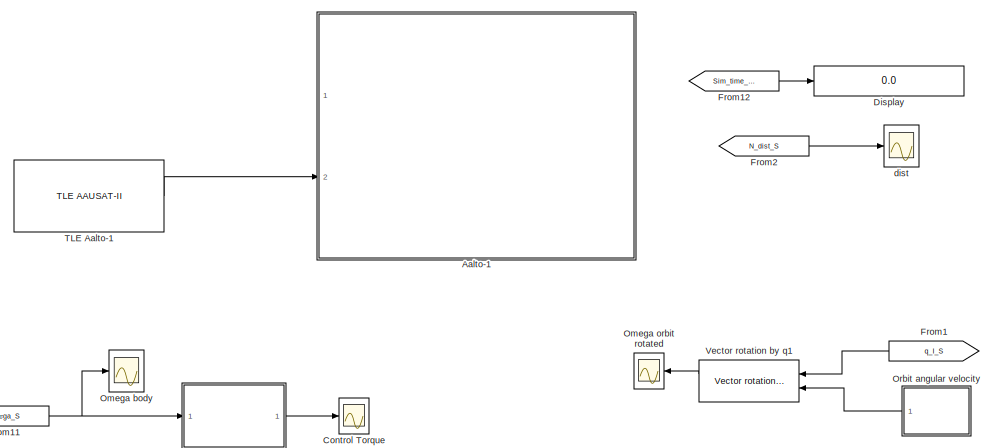
[diagram: root canvas - part 1/2, middle right region]
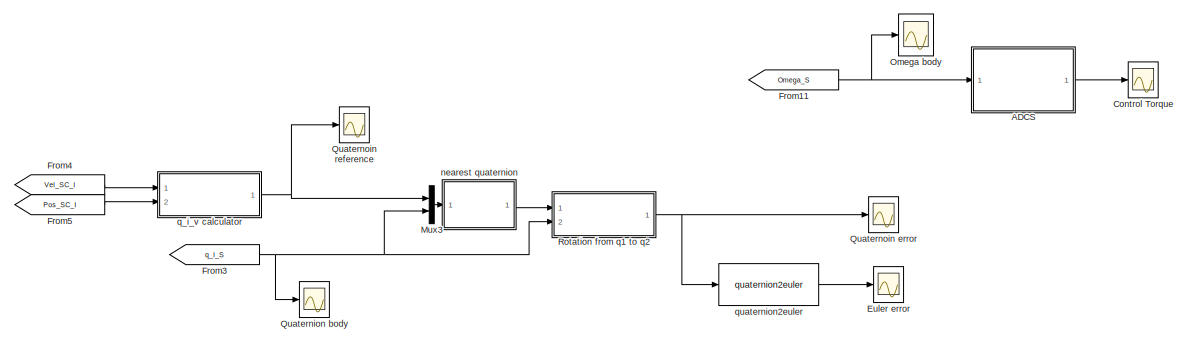
[diagram: root canvas - part 2/2, bottom center region]
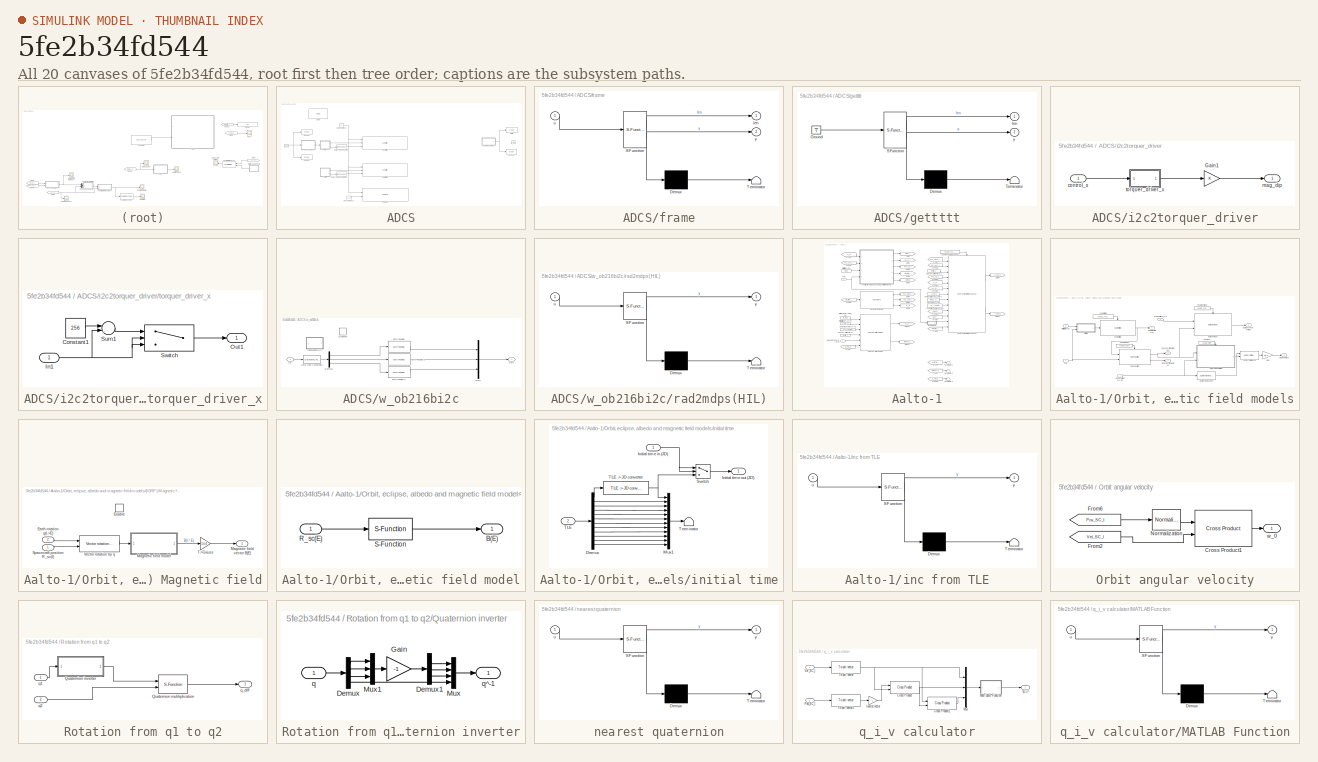
[diagram: thumbnail index - all 20 canvases of the model, root first then tree order]
MODEL slx_5fe2b34fd544
KIND model
BLOCK [SubSystem] ADCS
  Ports = [1, 1]
  RequestExecContextInheritance = off
BLOCK [DataTypeConversion] ADCS/Data Type Conversion
  OutDataTypeStr = double
  RndMeth = Floor
  SaturateOnIntegerOverflow = off
BLOCK [DataTypeConversion] ADCS/Data Type Conversion1
  Commented = on
  OutDataTypeStr = double
  RndMeth = Floor
  SaturateOnIntegerOverflow = off
BLOCK [Reference] ADCS/I2CM read  REF=speedgoatlib_IO311/I2C/I2CM read
  Commented = on
  Ports = [2, 1]
  SourceBlock = speedgoatlib_IO311/I2C/I2CM read
  SourceType = i2cmread_IO311
  chan = 1
  clockDivider = 100
  id = 1
  pciSlot = -1
  subIndexConfiguration = off
  ts = 0.001
BLOCK [Reference] ADCS/I2CM write  REF=speedgoatlib_IO311/I2C/I2CM write
  Ports = [3]
  SourceBlock = speedgoatlib_IO311/I2C/I2CM write
  SourceType = i2cmwrite_IO311
  chan = 1
  clockDivider = 100
  id = 1
  pciSlot = -1
  ts = 0.001
BLOCK [Reference] ADCS/I2CM write1  REF=speedgoatlib_IO311/I2C/I2CM write
  Commented = on
  Ports = [3]
  SourceBlock = speedgoatlib_IO311/I2C/I2CM write
  SourceType = i2cmwrite_IO311
  chan = 1
  clockDivider = 64
  id = 1
  pciSlot = -1
  ts = 0.0001
BLOCK [Reference] ADCS/Orbit r2  REF=slrtlib/Displays and
Logging/Scope 
  Ports = [1]
  SourceBlock = slrtlib/Displays and\nLogging/Scope
  SourceType = xpcscopeblock
  autorestart = off
  autostart = on
  dynamicfilemode = off
  filename = dipole_m.dat
  formatstr = '%15.6f'
  grid = on
  interleave = 10
  maxwritefilesize = 512*1024^2
  mode = Lazy
  noprepostsamples = 0
  nosamples = 10000000
  scopeno = 7
  scopetype = File
  triggerlevel = 0.0
  triggermode = Scope triggering
  triggersample = 0
  triggerscope = 1
  triggersignal = 1
  triggerslope = Either
  trigsignalfromport = off
  viewmode = Numerical
  writesize = 512*1024*1024
  ylimits = [0,0]
BLOCK [Reference] ADCS/Scope 1  REF=slrtlib/Displays and
Logging/Scope 
  Ports = [1]
  SourceBlock = slrtlib/Displays and\nLogging/Scope
  SourceType = xpcscopeblock
  autorestart = off
  autostart = on
  dynamicfilemode = off
  filename = w_ob1.dat
  formatstr = '%15.6f'
  grid = on
  interleave = 1000
  maxwritefilesize = 512*1024^2
  mode = Lazy
  noprepostsamples = 0
  nosamples = 100000
  scopeno = 1
  scopetype = File
  triggerlevel = 0.0
  triggermode = FreeRun
  triggersample = 0
  triggerscope = 1
  triggersignal = 1
  triggerslope = Either
  trigsignalfromport = off
  viewmode = Graphical redraw
  writesize = 512*1024
  ylimits = [0,0]
BLOCK [Reference] ADCS/Scope 3  REF=slrtlib/Displays and
Logging/Scope 
  Ports = [1]
  SourceBlock = slrtlib/Displays and\nLogging/Scope
  SourceType = xpcscopeblock
  autorestart = off
  autostart = on
  dynamicfilemode = off
  filename = w_ob1.dat
  formatstr = '%15.6f'
  grid = on
  interleave = 1000
  maxwritefilesize = 512*1024^2
  mode = Lazy
  noprepostsamples = 0
  nosamples = 1000
  scopeno = 3
  scopetype = Target
  triggerlevel = 0.0
  triggermode = FreeRun
  triggersample = 0
  triggerscope = 1
  triggersignal = 1
  triggerslope = Either
  trigsignalfromport = off
  viewmode = Graphical sliding
  writesize = 512*1024
  ylimits = [0,0]
BLOCK [Reference] ADCS/Scope 4  REF=slrtlib/Displays and
Logging/Scope 
  Ports = [1]
  SourceBlock = slrtlib/Displays and\nLogging/Scope
  SourceType = xpcscopeblock
  autorestart = off
  autostart = on
  dynamicfilemode = off
  filename = w_ob1.dat
  formatstr = '%15.6f'
  grid = on
  interleave = 10
  maxwritefilesize = 512*1024^2
  mode = Lazy
  noprepostsamples = 0
  nosamples = 100000
  scopeno = 4
  scopetype = Target
  triggerlevel = 0.0
  triggermode = FreeRun
  triggersample = 0
  triggerscope = 1
  triggersignal = 1
  triggerslope = Either
  trigsignalfromport = off
  viewmode = Graphical sliding
  writesize = 512*1024
  ylimits = [0,0]
BLOCK [Reference] ADCS/Setup  REF=speedgoatlib_IO311/Setup/Setup
  Ports = []
  SourceBlock = speedgoatlib_IO311/Setup/Setup
  SourceType = setup_IO311
  fpga1 = speedgoat_IO311_CI_01264
  group = Lower channel group setup
  id = 1
  lowerDirection = [1, 1, 0, 0, 1, 0, 1, 0, 0, 0, 0, 0, 0, 0, 0, 0]
  lowerReset = [1]
  lowerValue = [0]
  pciSlot = -1
  upperDirection = [0, 0, 0, 0, 0, 0, 0, 0, 0, 0, 0, 0, 0, 0, 0, 0]
  upperReset = [1]
  upperValue = [0]
BLOCK [Constant] ADCS/Slave address
  Value = 20
BLOCK [Constant] ADCS/Slave address1
  Commented = on
  Value = 13
BLOCK [SubSystem] ADCS/frame
  ErrorFcn = Stateflow.Translate.translate
  PermitHierarchicalResolution = ExplicitOnly
  Ports = [1, 2]
  RequestExecContextInheritance = off
  SFBlockType = MATLAB Function
  TreatAsAtomicUnit = on
BLOCK [Demux] ADCS/frame/ Demux 
  Outputs = 1
  Ports = [1, 1]
BLOCK [S-Function] ADCS/frame/ SFunction 
  EnableBusSupport = on
  FunctionName = sf_sfun
  PortCounts = [1 3]
  Ports = [1, 3]
  Tag = Stateflow S-Function Aalto1_ADCS_ang_vel 4
BLOCK [Terminator] ADCS/frame/ Terminator 
BLOCK [Outport] ADCS/frame/len
  IconDisplay = Port number
BLOCK [Inport] ADCS/frame/u
  IconDisplay = Port number
BLOCK [Outport] ADCS/frame/y
  IconDisplay = Port number
  Port = 2
BLOCK [SubSystem] ADCS/gettttt
  Commented = on
  ErrorFcn = Stateflow.Translate.translate
  PermitHierarchicalResolution = ExplicitOnly
  Ports = [0, 2]
  RequestExecContextInheritance = off
  SFBlockType = MATLAB Function
  TreatAsAtomicUnit = on
BLOCK [Demux] ADCS/gettttt/ Demux 
  Outputs = 1
  Ports = [1, 1]
BLOCK [Ground] ADCS/gettttt/ Ground 
BLOCK [S-Function] ADCS/gettttt/ SFunction 
  EnableBusSupport = on
  FunctionName = sf_sfun
  PortCounts = [1 3]
  Ports = [1, 3]
  Tag = Stateflow S-Function Aalto1_ADCS_ang_vel 5
BLOCK [Terminator] ADCS/gettttt/ Terminator 
BLOCK [Outport] ADCS/gettttt/len
  IconDisplay = Port number
BLOCK [Outport] ADCS/gettttt/y
  IconDisplay = Port number
  Port = 2
BLOCK [SubSystem] ADCS/i2c2torquer_driver
  Ports = [1, 1]
  RequestExecContextInheritance = off
BLOCK [Gain] ADCS/i2c2torquer_driver/Gain1
  OutDataTypeStr = Inherit: Inherit via internal rule
  ParamDataTypeStr = Inherit: Inherit via internal rule
  SaturateOnIntegerOverflow = off
BLOCK [Inport] ADCS/i2c2torquer_driver/control_s
  IconDisplay = Port number
BLOCK [Outport] ADCS/i2c2torquer_driver/mag_dip
  IconDisplay = Port number
BLOCK [SubSystem] ADCS/i2c2torquer_driver/torquer_driver_x
  Ports = [1, 1]
  RequestExecContextInheritance = off
BLOCK [Constant] ADCS/i2c2torquer_driver/torquer_driver_x/Constant1
  Value = 256
BLOCK [Inport] ADCS/i2c2torquer_driver/torquer_driver_x/In1
  IconDisplay = Port number
BLOCK [Outport] ADCS/i2c2torquer_driver/torquer_driver_x/Out1
  IconDisplay = Port number
BLOCK [Sum] ADCS/i2c2torquer_driver/torquer_driver_x/Sum1
  IconShape = round
  InputSameDT = off
  Inputs = |-+
  OutDataTypeStr = Inherit: Inherit via internal rule
  Ports = [2, 1]
  SaturateOnIntegerOverflow = off
BLOCK [Switch] ADCS/i2c2torquer_driver/torquer_driver_x/Switch
  Criteria = u2 > Threshold
  InputSameDT = off
  SaturateOnIntegerOverflow = off
  Threshold = 128
BLOCK [Outport] ADCS/rw_spd
  IconDisplay = Port number
BLOCK [Inport] ADCS/w_gyro
  IconDisplay = Port number
BLOCK [SubSystem] ADCS/w_ob216bi2c
  Ports = [1, 1]
  RequestExecContextInheritance = off
BLOCK [Reference] ADCS/w_ob216bi2c/Byte Packing   REF=xpcutilitieslib/Byte Packing 
  MaskAlignment = 1
  MaskPackedDataType = uint8
  MaskUnpackedDataTypes = {'single'}
  Ports = [1, 1]
  SourceBlock = xpcutilitieslib/Byte Packing
  SourceType = xpcbytepacking
BLOCK [Reference] ADCS/w_ob216bi2c/Byte Packing 1  REF=xpcutilitieslib/Byte Packing 
  MaskAlignment = 1
  MaskPackedDataType = uint8
  MaskUnpackedDataTypes = {'single'}
  Ports = [1, 1]
  SourceBlock = xpcutilitieslib/Byte Packing
  SourceType = xpcbytepacking
BLOCK [Reference] ADCS/w_ob216bi2c/Byte Packing 2  REF=xpcutilitieslib/Byte Packing 
  MaskAlignment = 1
  MaskPackedDataType = uint8
  MaskUnpackedDataTypes = {'single'}
  Ports = [1, 1]
  SourceBlock = xpcutilitieslib/Byte Packing
  SourceType = xpcbytepacking
BLOCK [DataTypeConversion] ADCS/w_ob216bi2c/Data Type Conversion
  OutDataTypeStr = single
  RndMeth = Floor
  SaturateOnIntegerOverflow = off
BLOCK [Demux] ADCS/w_ob216bi2c/Demux1
  DisplayOption = bar
  Outputs = 3
  Ports = [1, 3]
BLOCK [Inport] ADCS/w_ob216bi2c/In1
  IconDisplay = Port number
BLOCK [Mux] ADCS/w_ob216bi2c/Mux1
  DisplayOption = bar
  Inputs = 3
  Ports = [3, 1]
BLOCK [Outport] ADCS/w_ob216bi2c/Out1
  IconDisplay = Port number
BLOCK [Quantizer] ADCS/w_ob216bi2c/Quantizer
  QuantizationInterval = 1
BLOCK [SubSystem] ADCS/w_ob216bi2c/rad2mdps(HIL)
  ErrorFcn = Stateflow.Translate.translate
  PermitHierarchicalResolution = ExplicitOnly
  Ports = [1, 1]
  RequestExecContextInheritance = off
  SFBlockType = MATLAB Function
  TreatAsAtomicUnit = on
BLOCK [Demux] ADCS/w_ob216bi2c/rad2mdps(HIL)/ Demux 
  Outputs = 1
  Ports = [1, 1]
BLOCK [S-Function] ADCS/w_ob216bi2c/rad2mdps(HIL)/ SFunction 
  EnableBusSupport = on
  FunctionName = sf_sfun
  PortCounts = [1 2]
  Ports = [1, 2]
  Tag = Stateflow S-Function Aalto1_ADCS_ang_vel 2
BLOCK [Terminator] ADCS/w_ob216bi2c/rad2mdps(HIL)/ Terminator 
BLOCK [Inport] ADCS/w_ob216bi2c/rad2mdps(HIL)/u
  IconDisplay = Port number
BLOCK [Outport] ADCS/w_ob216bi2c/rad2mdps(HIL)/y
  IconDisplay = Port number
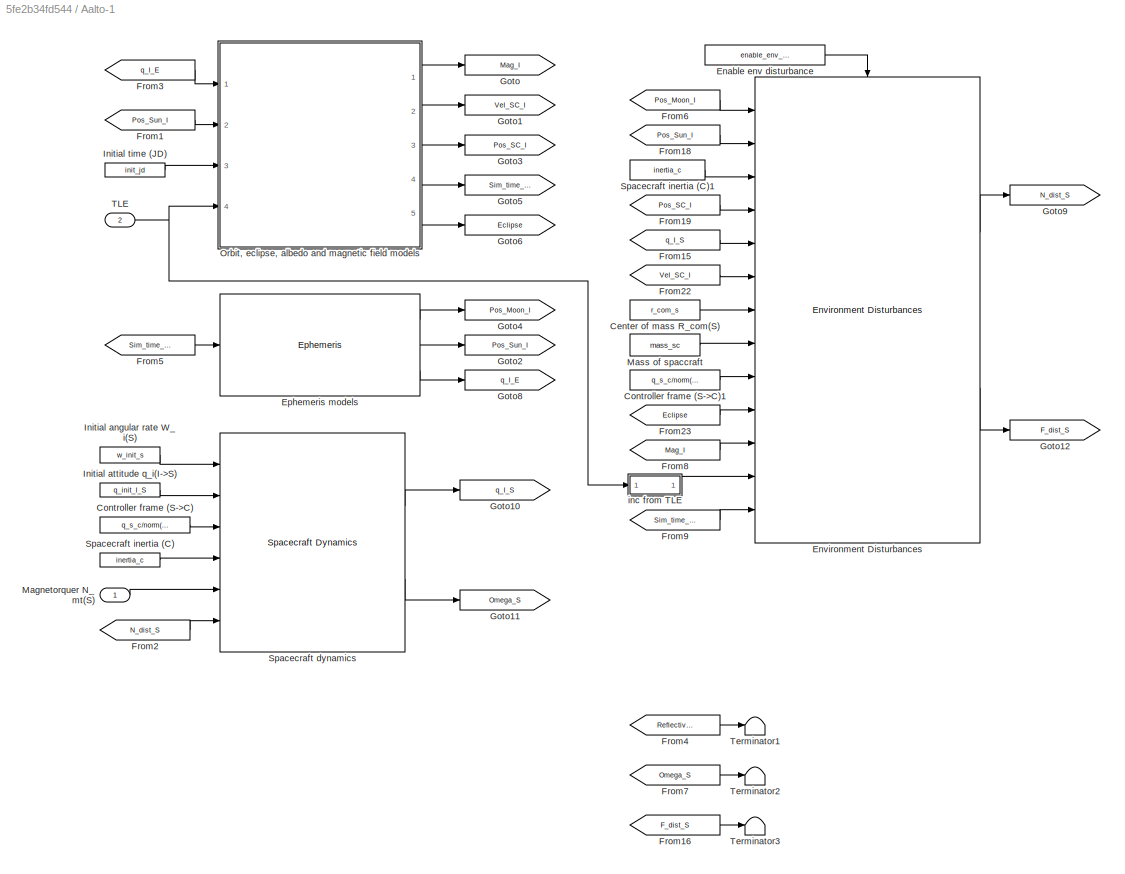
BLOCK [SubSystem] Aalto-1
  AncestorBlock = aausat3_lib/AAUSAT3
  Ports = [2]
  RequestExecContextInheritance = off
  ShowPortLabels = none
BLOCK [Constant] Aalto-1/Center of mass R_com(S)
  Value = r_com_s
BLOCK [Constant] Aalto-1/Controller frame (S->C)
  Value = q_s_c/norm(q_s_c)
BLOCK [Constant] Aalto-1/Controller frame (S->C)1
  Value = q_s_c/norm(q_s_c)
BLOCK [Constant] Aalto-1/Enable env disturbance
  Value = enable_env_disturbance
BLOCK [Reference] Aalto-1/Environment Disturbances  REF=aausat3_lib/Disturbances/Environment Disturbances  (lib defined in mdl_4157f6465749, slx_d9305f96731e)
  Cd = Cd
  Dim = Dim
  G = 6.672e-11
  M_earth = 5.9742e24
  M_moon = 0.073483e24
  M_sun = 1.989e30
  Ports = [13, 2, 1]
  SourceBlock = aausat3_lib/Disturbances/Environment Disturbances
  enable_atmospheric_dist = on
  enable_gravity_dist = on
  enable_mag_residual_dist = on
  enable_rad_dist = on
  rho = rho
  sola_m_flux = solar_m_flux
  solar_absorb_coeff = solar_absorb_coeff
BLOCK [Reference] Aalto-1/Ephemeris models  REF=aausat3_lib/Orbit and Ephemeris/Ephemeris  (lib defined in mdl_4157f6465749, slx_d9305f96731e)
  Ports = [1, 3]
  SourceBlock = aausat3_lib/Orbit and Ephemeris/Ephemeris
  SourceType = SubSystem
BLOCK [From] Aalto-1/From1
  CloseFcn = tagdialog Close
  GotoTag = Pos_Sun_I
  TagVisibility = global
BLOCK [From] Aalto-1/From15
  CloseFcn = tagdialog Close
  GotoTag = q_I_S
  TagVisibility = global
BLOCK [From] Aalto-1/From16
  CloseFcn = tagdialog Close
  GotoTag = F_dist_S
  TagVisibility = global
BLOCK [From] Aalto-1/From18
  CloseFcn = tagdialog Close
  GotoTag = Pos_Sun_I
  TagVisibility = global
BLOCK [From] Aalto-1/From19
  CloseFcn = tagdialog Close
  GotoTag = Pos_SC_I
  TagVisibility = global
BLOCK [From] Aalto-1/From2
  CloseFcn = tagdialog Close
  GotoTag = N_dist_S
  TagVisibility = global
BLOCK [From] Aalto-1/From22
  CloseFcn = tagdialog Close
  GotoTag = Vel_SC_I
  TagVisibility = global
BLOCK [From] Aalto-1/From23
  CloseFcn = tagdialog Close
  GotoTag = Eclipse
  TagVisibility = global
BLOCK [From] Aalto-1/From3
  CloseFcn = tagdialog Close
  GotoTag = q_I_E
  TagVisibility = global
BLOCK [From] Aalto-1/From4
  CloseFcn = tagdialog Close
  GotoTag = Reflectivity
BLOCK [From] Aalto-1/From5
  CloseFcn = tagdialog Close
  GotoTag = Sim_time_JD
  TagVisibility = global
BLOCK [From] Aalto-1/From6
  CloseFcn = tagdialog Close
  GotoTag = Pos_Moon_I
  TagVisibility = global
BLOCK [From] Aalto-1/From7
  CloseFcn = tagdialog Close
  GotoTag = Omega_S
  TagVisibility = global
BLOCK [From] Aalto-1/From8
  CloseFcn = tagdialog Close
  GotoTag = Mag_I
  TagVisibility = global
BLOCK [From] Aalto-1/From9
  CloseFcn = tagdialog Close
  GotoTag = Sim_time_JD
  TagVisibility = global
BLOCK [Goto] Aalto-1/Goto
  GotoTag = Mag_I
  TagVisibility = global
BLOCK [Goto] Aalto-1/Goto1
  GotoTag = Vel_SC_I
  TagVisibility = global
BLOCK [Goto] Aalto-1/Goto10
  GotoTag = q_I_S
  TagVisibility = global
BLOCK [Goto] Aalto-1/Goto11
  GotoTag = Omega_S
  TagVisibility = global
BLOCK [Goto] Aalto-1/Goto12
  GotoTag = F_dist_S
  TagVisibility = global
BLOCK [Goto] Aalto-1/Goto2
  GotoTag = Pos_Sun_I
  TagVisibility = global
BLOCK [Goto] Aalto-1/Goto3
  GotoTag = Pos_SC_I
  TagVisibility = global
BLOCK [Goto] Aalto-1/Goto4
  GotoTag = Pos_Moon_I
  TagVisibility = global
BLOCK [Goto] Aalto-1/Goto5
  GotoTag = Sim_time_JD
  TagVisibility = global
BLOCK [Goto] Aalto-1/Goto6
  GotoTag = Eclipse
  TagVisibility = global
BLOCK [Goto] Aalto-1/Goto8
  GotoTag = q_I_E
  TagVisibility = global
BLOCK [Goto] Aalto-1/Goto9
  GotoTag = N_dist_S
  TagVisibility = global
BLOCK [Constant] Aalto-1/Initial angular rate W_i(S)
  Value = w_init_s
BLOCK [Constant] Aalto-1/Initial attitude q_i(I->S)
  Value = q_init_I_S
BLOCK [Constant] Aalto-1/Initial time (JD)
  Value = init_jd
BLOCK [Inport] Aalto-1/Magnetorquer N_mt(S)
  IconDisplay = Port number
BLOCK [Constant] Aalto-1/Mass of spaccraft
  Value = mass_sc
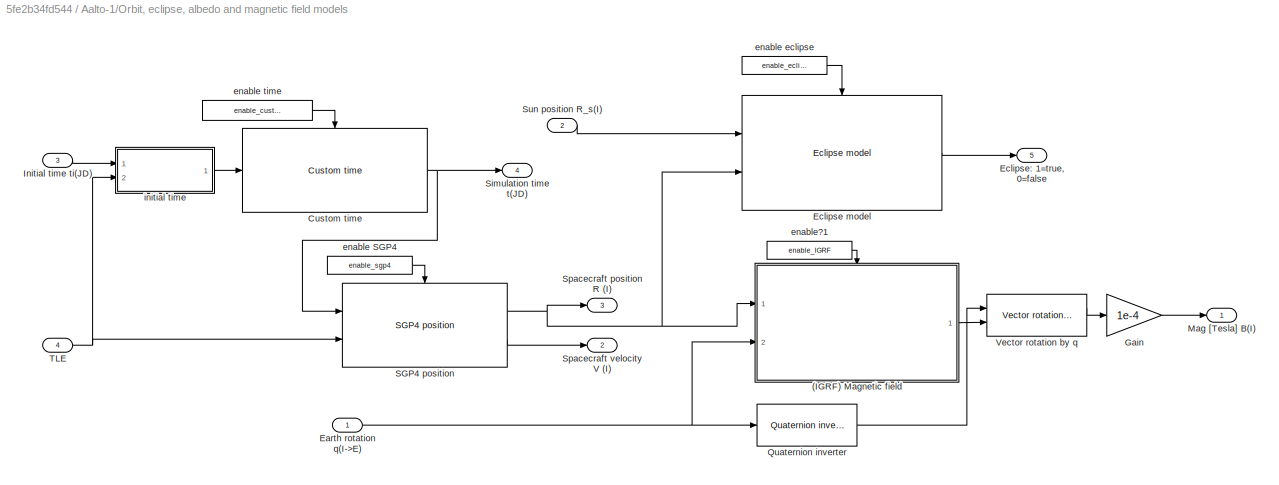
BLOCK [SubSystem] Aalto-1/Orbit, eclipse, albedo and magnetic field models
  AncestorBlock = aausat3_lib/Orbit and Ephemeris/Orbit and Magnetic field models
  Ports = [4, 5]
  RequestExecContextInheritance = off
BLOCK [SubSystem] Aalto-1/Orbit, eclipse, albedo and magnetic field models/(IGRF) Magnetic field
  AncestorBlock = aausat3_lib/Orbit and Ephemeris/(IGRF) Magnetic field
  Ports = [2, 1, 1]
  RequestExecContextInheritance = off
  TreatAsAtomicUnit = on
BLOCK [Inport] Aalto-1/Orbit, eclipse, albedo and magnetic field models/(IGRF) Magnetic field/Earth rotation q(I->E)
  IconDisplay = Port number
  Port = 2
BLOCK [EnablePort] Aalto-1/Orbit, eclipse, albedo and magnetic field models/(IGRF) Magnetic field/Enable
  Ports = []
BLOCK [SubSystem] Aalto-1/Orbit, eclipse, albedo and magnetic field models/(IGRF) Magnetic field/Magnetic field model
  Ports = [1, 1]
  RequestExecContextInheritance = off
BLOCK [Outport] Aalto-1/Orbit, eclipse, albedo and magnetic field models/(IGRF) Magnetic field/Magnetic field model/B(E)
  IconDisplay = Port number
BLOCK [Inport] Aalto-1/Orbit, eclipse, albedo and magnetic field models/(IGRF) Magnetic field/Magnetic field model/R_sc(E)
  IconDisplay = Port number
BLOCK [S-Function] Aalto-1/Orbit, eclipse, albedo and magnetic field models/(IGRF) Magnetic field/Magnetic field model/S-Function
  EnableBusSupport = off
  FunctionName = igrfS2
  Parameters = 2009,13
  Ports = [1, 1]
BLOCK [Outport] Aalto-1/Orbit, eclipse, albedo and magnetic field models/(IGRF) Magnetic field/Magnetic field vector B(E)
  IconDisplay = Port number
BLOCK [Inport] Aalto-1/Orbit, eclipse, albedo and magnetic field models/(IGRF) Magnetic field/Spacecraft position R_sc(I)
  IconDisplay = Port number
BLOCK [Gain] Aalto-1/Orbit, eclipse, albedo and magnetic field models/(IGRF) Magnetic field/T->Gauss
  Gain = 1e4
BLOCK [Reference] Aalto-1/Orbit, eclipse, albedo and magnetic field models/(IGRF) Magnetic field/Vector rotation by q  REF=aausat3_lib/Math Utilities/Quaternion operations/Vector rotation by q  (lib defined in mdl_4157f6465749, slx_d9305f96731e)
  Ports = [2, 2]
  SourceBlock = aausat3_lib/Math Utilities/Quaternion operations/Vector rotation by q
  SourceType = SubSystem
BLOCK [Reference] Aalto-1/Orbit, eclipse, albedo and magnetic field models/Custom time  REF=aausat3_lib/Orbit and Ephemeris/Custom time  (lib defined in mdl_4157f6465749, slx_d9305f96731e)
  Ports = [1, 1, 1]
  SourceBlock = aausat3_lib/Orbit and Ephemeris/Custom time
  SourceType = SubSystem
BLOCK [Inport] Aalto-1/Orbit, eclipse, albedo and magnetic field models/Earth rotation q(I->E)
  IconDisplay = Port number
BLOCK [Reference] Aalto-1/Orbit, eclipse, albedo and magnetic field models/Eclipse model  REF=aausat3_lib/Orbit and Ephemeris/Eclipse model  (lib defined in mdl_4157f6465749, slx_d9305f96731e)
  Ports = [2, 1, 1]
  SourceBlock = aausat3_lib/Orbit and Ephemeris/Eclipse model
  enable = off
  r_e = r_e
  theta_e = theta_e
BLOCK [Outport] Aalto-1/Orbit, eclipse, albedo and magnetic field models/Eclipse: 1=true, 0=false
  IconDisplay = Port number
  Port = 5
  PortDimensions = 1
BLOCK [Gain] Aalto-1/Orbit, eclipse, albedo and magnetic field models/Gain
  Gain = 1e-4
  OutDataTypeStr = Inherit: Inherit via internal rule
  ParamDataTypeStr = Inherit: Inherit via internal rule
  SaturateOnIntegerOverflow = off
BLOCK [Inport] Aalto-1/Orbit, eclipse, albedo and magnetic field models/Initial time ti(JD)
  IconDisplay = Port number
  Port = 3
BLOCK [Outport] Aalto-1/Orbit, eclipse, albedo and magnetic field models/Mag [Tesla] B(I)
  IconDisplay = Port number
BLOCK [Reference] Aalto-1/Orbit, eclipse, albedo and magnetic field models/Quaternion inverter  REF=aausat3_lib/Math Utilities/Quaternion operations/Quaternion inverter  (lib defined in mdl_4157f6465749, slx_d9305f96731e)
  Ports = [1, 1]
  SourceBlock = aausat3_lib/Math Utilities/Quaternion operations/Quaternion inverter
  SourceType = SubSystem
BLOCK [Reference] Aalto-1/Orbit, eclipse, albedo and magnetic field models/SGP4 position  REF=aausat3_lib/Orbit and Ephemeris/SGP4 position  (lib defined in mdl_4157f6465749, slx_d9305f96731e)
  Ports = [2, 2, 1]
  SourceBlock = aausat3_lib/Orbit and Ephemeris/SGP4 position
  SourceType = SubSystem
BLOCK [Outport] Aalto-1/Orbit, eclipse, albedo and magnetic field models/Simulation time t(JD)
  IconDisplay = Port number
  Port = 4
BLOCK [Outport] Aalto-1/Orbit, eclipse, albedo and magnetic field models/Spacecraft position R (I)
  IconDisplay = Port number
  Port = 3
BLOCK [Outport] Aalto-1/Orbit, eclipse, albedo and magnetic field models/Spacecraft velocity V (I)
  IconDisplay = Port number
  Port = 2
BLOCK [Inport] Aalto-1/Orbit, eclipse, albedo and magnetic field models/Sun position R_s(I)
  IconDisplay = Port number
  Port = 2
BLOCK [Inport] Aalto-1/Orbit, eclipse, albedo and magnetic field models/TLE
  IconDisplay = Port number
  Port = 4
BLOCK [Reference] Aalto-1/Orbit, eclipse, albedo and magnetic field models/Vector rotation by q  REF=aausat3_lib/Math Utilities/Quaternion operations/Vector rotation by q  (lib defined in mdl_4157f6465749, slx_d9305f96731e)
  Ports = [2, 2]
  SourceBlock = aausat3_lib/Math Utilities/Quaternion operations/Vector rotation by q
  SourceType = SubSystem
BLOCK [Constant] Aalto-1/Orbit, eclipse, albedo and magnetic field models/enable SGP4
  Value = enable_sgp4
BLOCK [Constant] Aalto-1/Orbit, eclipse, albedo and magnetic field models/enable eclipse
  Value = enable_eclipse
BLOCK [Constant] Aalto-1/Orbit, eclipse, albedo and magnetic field models/enable time
  Value = enable_custom_time
BLOCK [Constant] Aalto-1/Orbit, eclipse, albedo and magnetic field models/enable?1
  Value = enable_IGRF
BLOCK [SubSystem] Aalto-1/Orbit, eclipse, albedo and magnetic field models/initial time
  Ports = [2, 1]
  RequestExecContextInheritance = off
BLOCK [Demux] Aalto-1/Orbit, eclipse, albedo and magnetic field models/initial time/Demux
  DisplayOption = bar
  Outputs = 12
  Ports = [1, 12]
BLOCK [Inport] Aalto-1/Orbit, eclipse, albedo and magnetic field models/initial time/Initial time in (JD)
  IconDisplay = Port number
BLOCK [Outport] Aalto-1/Orbit, eclipse, albedo and magnetic field models/initial time/Initial time out (JD)
  IconDisplay = Port number
BLOCK [Mux] Aalto-1/Orbit, eclipse, albedo and magnetic field models/initial time/Mux1
  DisplayOption = bar
  Inputs = 12
  Ports = [12, 1]
BLOCK [Switch] Aalto-1/Orbit, eclipse, albedo and magnetic field models/initial time/Switch
  Criteria = u2 > Threshold
  InputSameDT = off
  SaturateOnIntegerOverflow = off
BLOCK [Inport] Aalto-1/Orbit, eclipse, albedo and magnetic field models/initial time/TLE
  IconDisplay = Port number
  Port = 2
BLOCK [Reference] Aalto-1/Orbit, eclipse, albedo and magnetic field models/initial time/TLE -> JD converter  REF=aausat3_lib/Other Model Utilities/TLE -> JD converter  (lib defined in mdl_4157f6465749, slx_d9305f96731e)
  Ports = [1, 1]
  SourceBlock = aausat3_lib/Other Model Utilities/TLE -> JD converter
  SourceType = SubSystem
BLOCK [Terminator] Aalto-1/Orbit, eclipse, albedo and magnetic field models/initial time/Terminator
BLOCK [Reference] Aalto-1/Spacecraft dynamics  REF=aausat3_lib/Dynamics and Kinematics/Spacecraft Dynamics  (lib defined in mdl_4157f6465749, slx_d9305f96731e)
  Ports = [6, 2]
  SourceBlock = aausat3_lib/Dynamics and Kinematics/Spacecraft Dynamics
  SourceType = SubSystem
BLOCK [Constant] Aalto-1/Spacecraft inertia (C)
  Value = inertia_c
BLOCK [Constant] Aalto-1/Spacecraft inertia (C)1
  Value = inertia_c
BLOCK [Inport] Aalto-1/TLE
  IconDisplay = Port number
  Port = 2
BLOCK [Terminator] Aalto-1/Terminator1
BLOCK [Terminator] Aalto-1/Terminator2
BLOCK [Terminator] Aalto-1/Terminator3
BLOCK [SubSystem] Aalto-1/inc from TLE
  ErrorFcn = Stateflow.Translate.translate
  PermitHierarchicalResolution = ExplicitOnly
  Ports = [1, 1]
  RequestExecContextInheritance = off
  SFBlockType = MATLAB Function
  TreatAsAtomicUnit = on
BLOCK [Demux] Aalto-1/inc from TLE/ Demux 
  Outputs = 1
  Ports = [1, 1]
BLOCK [S-Function] Aalto-1/inc from TLE/ SFunction 
  EnableBusSupport = on
  FunctionName = sf_sfun
  PortCounts = [1 2]
  Ports = [1, 2]
  Tag = Stateflow S-Function Aalto1_ADCS_ang_vel 17
BLOCK [Terminator] Aalto-1/inc from TLE/ Terminator 
BLOCK [Inport] Aalto-1/inc from TLE/u
  IconDisplay = Port number
BLOCK [Outport] Aalto-1/inc from TLE/y
  IconDisplay = Port number
BLOCK [Scope] Control Torque
  DataFormat = StructureWithTime
  Floating = off
  LimitDataPoints = off
  NumInputPorts = 1
  Ports = [1]
  SampleInput = on
  SaveName = control_torque
  SaveToWorkspace = on
  ShowLegends = off
  TimeRange = 6000
  YMax = 1.1e-05
  YMin = -1.1e-05
  ZoomMode = yonly
BLOCK [Display] Display
  Decimation = 1
  Format = long
  Ports = [1]
BLOCK [Scope] Euler error
  DataFormat = StructureWithTime
  Floating = off
  LimitDataPoints = off
  NumInputPorts = 1
  Ports = [1]
  SampleInput = on
  SaveName = ScopeData3
  ShowLegends = off
  TimeRange = 6000
  YMax = 3.5
  YMin = -3.5
  ZoomMode = yonly
BLOCK [From] From1
  CloseFcn = tagdialog Close
  GotoTag = q_I_S
  TagVisibility = global
BLOCK [From] From11
  CloseFcn = tagdialog Close
  GotoTag = Omega_S
  TagVisibility = global
BLOCK [From] From12
  CloseFcn = tagdialog Close
  GotoTag = Sim_time_JD
  TagVisibility = global
BLOCK [From] From2
  CloseFcn = tagdialog Close
  GotoTag = N_dist_S
  TagVisibility = global
BLOCK [From] From3
  CloseFcn = tagdialog Close
  GotoTag = q_I_S
  TagVisibility = global
BLOCK [From] From4
  CloseFcn = tagdialog Close
  GotoTag = Vel_SC_I
  TagVisibility = global
BLOCK [From] From5
  CloseFcn = tagdialog Close
  GotoTag = Pos_SC_I
  TagVisibility = global
BLOCK [Mux] Mux3
  DisplayOption = bar
  Inputs = 2
  Ports = [2, 1]
BLOCK [Scope] Omega body
  DataFormat = StructureWithTime
  Floating = off
  LimitDataPoints = off
  NumInputPorts = 1
  Ports = [1]
  SampleInput = on
  SaveName = ScopeData6
  ShowLegends = off
  TimeRange = 6000
  YMax = 0.55
  YMin = -0.55
  ZoomMode = yonly
BLOCK [Scope] Omega orbit rotated
  DataFormat = StructureWithTime
  Floating = off
  LimitDataPoints = off
  NumInputPorts = 1
  Ports = [1]
  SampleInput = on
  SaveName = ScopeData9
  ShowLegends = off
  TimeRange = 6000
  YMax = 0.0011
  YMin = -0.0011
  ZoomMode = yonly
BLOCK [SubSystem] Orbit angular velocity
  Ports = [0, 1]
  RequestExecContextInheritance = off
BLOCK [Reference] Orbit angular velocity/Cross Product1  REF=aausat3_lib/Math Utilities/Vector operations/Cross Product  (lib defined in mdl_4157f6465749, slx_d9305f96731e)
  Ports = [2, 1]
  SourceBlock = aausat3_lib/Math Utilities/Vector operations/Cross Product
  SourceType = SubSystem
BLOCK [From] Orbit angular velocity/From2
  CloseFcn = tagdialog Close
  GotoTag = Vel_SC_I
  TagVisibility = global
BLOCK [From] Orbit angular velocity/From6
  CloseFcn = tagdialog Close
  GotoTag = Pos_SC_I
  TagVisibility = global
BLOCK [Reference] Orbit angular velocity/Normalization  REF=dspmathops/Normalization
  Bias = 1e-10
  ColComp = on
  Dimension = 1
  LockScale = off
  NormOver = Each column
  NormType = Squared 2-norm
  Ports = [1, 1]
  SourceBlock = dspmathops/Normalization
  SourceType = Normalization
  accumDataTypeStr = Inherit: Same as product output
  accumFracLength = 30
  accumLastDataTypeStr = Inherit: Same as product output
  accumMode = Same as product output
  accumWordLength = 32
  additionalParams = off
  allowOverrides = on
  outputDataTypeStr = Inherit: Same as product output
  outputFracLength = 32
  outputLastDataTypeStr = Inherit: Same as product output
  outputMax = []
  outputMin = []
  outputMode = Same as product output
  outputWordLength = 32
  overflowMode = off
  prodOutputDataTypeStr = Inherit: Same as input
  prodOutputFracLength = 32
  prodOutputLastDataTypeStr = Inherit: Same as input
  prodOutputMode = Same as input
  prodOutputWordLength = 32
  roundingMode = Floor
BLOCK [Outport] Orbit angular velocity/w_0
  IconDisplay = Port number
BLOCK [Scope] Quaternion body
  DataFormat = StructureWithTime
  Floating = off
  LimitDataPoints = off
  NumInputPorts = 1
  Ports = [1]
  SampleInput = on
  SaveName = ScopeData8
  ShowLegends = off
  TimeRange = 6000
  YMax = 1
  YMin = -1
  ZoomMode = xonly
BLOCK [Scope] Quaternoin error
  DataFormat = StructureWithTime
  Floating = off
  LimitDataPoints = off
  NumInputPorts = 1
  Ports = [1]
  SampleInput = on
  SaveName = quaternion_error
  SaveToWorkspace = on
  ShowLegends = off
  TimeRange = 7000
  YMax = 1
  YMin = -0.9
  ZoomMode = yonly
BLOCK [Scope] Quaternoin reference
  DataFormat = StructureWithTime
  Floating = off
  LimitDataPoints = off
  NumInputPorts = 1
  Ports = [1]
  SampleInput = on
  ShowLegends = off
  TimeRange = 6000
  YMax = 1
  YMin = -1
  ZoomMode = xonly
BLOCK [SubSystem] Rotation from q1 to q2
  AncestorBlock = aausat3_lib/Math Utilities/Quaternion operations/Rotation from q1 to q2
  Ports = [2, 1]
  RequestExecContextInheritance = off
BLOCK [SubSystem] Rotation from q1 to q2/Quaternion inverter
  Ports = [1, 1]
  RequestExecContextInheritance = off
BLOCK [Demux] Rotation from q1 to q2/Quaternion inverter/Demux
  Ports = [1, 4]
BLOCK [Demux] Rotation from q1 to q2/Quaternion inverter/Demux1
  Outputs = 3
  Ports = [1, 3]
BLOCK [Gain] Rotation from q1 to q2/Quaternion inverter/Gain
  Gain = -1
BLOCK [Mux] Rotation from q1 to q2/Quaternion inverter/Mux
  DisplayOption = bar
  Ports = [4, 1]
BLOCK [Mux] Rotation from q1 to q2/Quaternion inverter/Mux1
  DisplayOption = bar
  Inputs = 3
  Ports = [3, 1]
BLOCK [Inport] Rotation from q1 to q2/Quaternion inverter/q
  IconDisplay = Port number
BLOCK [Outport] Rotation from q1 to q2/Quaternion inverter/q^-1
  IconDisplay = Port number
BLOCK [S-Function] Rotation from q1 to q2/Quaternion mulitiplication
  EnableBusSupport = off
  FunctionName = qmul
  Ports = [2, 1]
BLOCK [Inport] Rotation from q1 to q2/q1
  IconDisplay = Port number
BLOCK [Inport] Rotation from q1 to q2/q2
  IconDisplay = Port number
  Port = 2
BLOCK [Outport] Rotation from q1 to q2/q_diff
  IconDisplay = Port number
BLOCK [Reference] TLE Aalto-1  REF=aausat3_lib/Orbit and Ephemeris/TLE AAUSAT-II  (lib defined in mdl_4157f6465749, slx_d9305f96731e)
  JulianDay = 14321.69542252
  Ports = [0, 1]
  SourceBlock = aausat3_lib/Orbit and Ephemeris/TLE AAUSAT-II
  bstar = .76898e-4
  eo = 0.002
  omegao = 254.1774
  satname = 'Aalto-2'
  ts = 1
  xincl = 98.6
  xmo = 105.7862
  xndd6o = 0.0
  xndt2o = 0.00000555
  xno = 14.60096319131649561528*0+15.65129795862419730331*0+16.29879739439279729389*1
  xnodeo = 12.0
BLOCK [Reference] Vector rotation by q1  REF=aausat3_lib/Math Utilities/Quaternion operations/Vector rotation by q  (lib defined in mdl_4157f6465749, slx_d9305f96731e)
  Ports = [2, 2]
  SourceBlock = aausat3_lib/Math Utilities/Quaternion operations/Vector rotation by q
  SourceType = SubSystem
BLOCK [Scope] dist
  DataFormat = StructureWithTime
  Floating = off
  LimitDataPoints = off
  NumInputPorts = 1
  Ports = [1]
  SampleInput = on
  SaveName = dist
  SaveToWorkspace = on
  ShowLegends = off
  TimeRange = 6000
  YMax = 1e-05
  YMin = -1e-05
  ZoomMode = xonly
BLOCK [SubSystem] nearest quaternion
  ErrorFcn = Stateflow.Translate.translate
  PermitHierarchicalResolution = ExplicitOnly
  Ports = [1, 1]
  RequestExecContextInheritance = off
  SFBlockType = MATLAB Function
  TreatAsAtomicUnit = on
BLOCK [Demux] nearest quaternion/ Demux 
  Outputs = 1
  Ports = [1, 1]
BLOCK [S-Function] nearest quaternion/ SFunction 
  EnableBusSupport = on
  FunctionName = sf_sfun
  PortCounts = [1 2]
  Ports = [1, 2]
  Tag = Stateflow S-Function Aalto1_ADCS_ang_vel 1
BLOCK [Terminator] nearest quaternion/ Terminator 
BLOCK [Inport] nearest quaternion/u
  IconDisplay = Port number
BLOCK [Outport] nearest quaternion/y
  IconDisplay = Port number
BLOCK [SubSystem] q_i_v calculator
  Ports = [2, 1]
  RequestExecContextInheritance = off
BLOCK [Reference] q_i_v calculator/Cross Product  REF=aausat3_lib/Math Utilities/Vector operations/Cross Product  (lib defined in mdl_4157f6465749, slx_d9305f96731e)
  Ports = [2, 1]
  SourceBlock = aausat3_lib/Math Utilities/Vector operations/Cross Product
  SourceType = SubSystem
BLOCK [Reference] q_i_v calculator/Cross Product1  REF=aausat3_lib/Math Utilities/Vector operations/Cross Product  (lib defined in mdl_4157f6465749, slx_d9305f96731e)
  Ports = [2, 1]
  SourceBlock = aausat3_lib/Math Utilities/Vector operations/Cross Product
  SourceType = SubSystem
BLOCK [SubSystem] q_i_v calculator/MATLAB Function
  ErrorFcn = Stateflow.Translate.translate
  PermitHierarchicalResolution = ExplicitOnly
  Ports = [1, 1]
  RequestExecContextInheritance = off
  SFBlockType = MATLAB Function
  TreatAsAtomicUnit = on
BLOCK [Demux] q_i_v calculator/MATLAB Function/ Demux 
  Outputs = 1
  Ports = [1, 1]
BLOCK [S-Function] q_i_v calculator/MATLAB Function/ SFunction 
  EnableBusSupport = on
  FunctionName = sf_sfun
  PortCounts = [1 2]
  Ports = [1, 2]
  Tag = Stateflow S-Function Aalto1_ADCS_ang_vel 3
BLOCK [Terminator] q_i_v calculator/MATLAB Function/ Terminator 
BLOCK [Inport] q_i_v calculator/MATLAB Function/u
  IconDisplay = Port number
BLOCK [Outport] q_i_v calculator/MATLAB Function/y
  IconDisplay = Port number
BLOCK [Mux] q_i_v calculator/Mux
  DisplayOption = bar
  Inputs = 3
  Ports = [3, 1]
BLOCK [Inport] q_i_v calculator/Pos_SC_I
  IconDisplay = Port number
  Port = 2
BLOCK [Reference] q_i_v calculator/To unit vector  REF=aausat3_lib/Math Utilities/Vector operations/To unit vector  (lib defined in mdl_4157f6465749, slx_d9305f96731e)
  Ports = [1, 1]
  SourceBlock = aausat3_lib/Math Utilities/Vector operations/To unit vector
  SourceType = SubSystem
BLOCK [Reference] q_i_v calculator/To unit vector1  REF=aausat3_lib/Math Utilities/Vector operations/To unit vector  (lib defined in mdl_4157f6465749, slx_d9305f96731e)
  Ports = [1, 1]
  SourceBlock = aausat3_lib/Math Utilities/Vector operations/To unit vector
  SourceType = SubSystem
BLOCK [Inport] q_i_v calculator/Vel_SC_I
  IconDisplay = Port number
BLOCK [Gain] q_i_v calculator/inverse vector
  Gain = -1
  OutDataTypeStr = Inherit: Inherit via internal rule
  ParamDataTypeStr = Inherit: Inherit via internal rule
  SaturateOnIntegerOverflow = off
BLOCK [Outport] q_i_v calculator/q_I_O
  IconDisplay = Port number
BLOCK [Reference] quaternion2euler  REF=aausat3_lib/Math Utilities/Quaternion operations/quaternion2euler  (lib defined in mdl_4157f6465749, slx_d9305f96731e)
  Ports = [1, 1]
  SourceBlock = aausat3_lib/Math Utilities/Quaternion operations/quaternion2euler
  SourceType = SubSystem
LINE ADCS/Data Type Conversion1:1 -> ADCS/I2CM write1:3
LINE ADCS/Data Type Conversion:1 -> ADCS/I2CM write:3
LINE ADCS/Slave address1:1 -> ADCS/I2CM read:2
NET ADCS/Slave address:1 -> ADCS/I2CM read:1, ADCS/I2CM write1:1, ADCS/I2CM write:1
LINE ADCS/frame:1 -> ADCS/I2CM write:2
LINE ADCS/frame:2 -> ADCS/Data Type Conversion:1
LINE ADCS/gettttt:1 -> ADCS/I2CM write1:2
LINE ADCS/gettttt:2 -> ADCS/Data Type Conversion1:1
LINE ADCS/i2c2torquer_driver/Gain1:1 -> ADCS/i2c2torquer_driver/mag_dip:1
LINE ADCS/i2c2torquer_driver/control_s:1 -> ADCS/i2c2torquer_driver/torquer_driver_x:1
LINE ADCS/i2c2torquer_driver/torquer_driver_x/Constant1:1 -> ADCS/i2c2torquer_driver/torquer_driver_x/Sum1:1
NET ADCS/i2c2torquer_driver/torquer_driver_x/In1:1 -> ADCS/i2c2torquer_driver/torquer_driver_x/Sum1:2, ADCS/i2c2torquer_driver/torquer_driver_x/Switch:2, ADCS/i2c2torquer_driver/torquer_driver_x/Switch:3
LINE ADCS/i2c2torquer_driver/torquer_driver_x/Sum1:1 -> ADCS/i2c2torquer_driver/torquer_driver_x/Switch:1
LINE ADCS/i2c2torquer_driver/torquer_driver_x/Switch:1 -> ADCS/i2c2torquer_driver/torquer_driver_x/Out1:1
LINE ADCS/i2c2torquer_driver/torquer_driver_x:1 -> ADCS/i2c2torquer_driver/Gain1:1
NET ADCS/i2c2torquer_driver:1 -> ADCS/Orbit r2:1, ADCS/Scope 4:1
NET ADCS/w_gyro:1 -> ADCS/Scope 1:1, ADCS/Scope 3:1, ADCS/w_ob216bi2c:1
LINE ADCS/w_ob216bi2c/Byte Packing 1:1 -> ADCS/w_ob216bi2c/Mux1:2
LINE ADCS/w_ob216bi2c/Byte Packing 2:1 -> ADCS/w_ob216bi2c/Mux1:3
LINE ADCS/w_ob216bi2c/Byte Packing :1 -> ADCS/w_ob216bi2c/Mux1:1
LINE ADCS/w_ob216bi2c/Data Type Conversion:1 -> ADCS/w_ob216bi2c/Demux1:1
LINE ADCS/w_ob216bi2c/Demux1:1 -> ADCS/w_ob216bi2c/Byte Packing :1
LINE ADCS/w_ob216bi2c/Demux1:2 -> ADCS/w_ob216bi2c/Byte Packing 1:1
LINE ADCS/w_ob216bi2c/Demux1:3 -> ADCS/w_ob216bi2c/Byte Packing 2:1
LINE ADCS/w_ob216bi2c/In1:1 -> ADCS/w_ob216bi2c/Data Type Conversion:1
LINE ADCS/w_ob216bi2c/Mux1:1 -> ADCS/w_ob216bi2c/Out1:1
LINE ADCS/w_ob216bi2c:1 -> ADCS/frame:1
LINE ADCS:1 -> Control Torque:1
NET From11:1 -> ADCS:1, Omega body:1
LINE From12:1 -> Display:1
LINE From1:1 -> Vector rotation by q1:1
LINE From2:1 -> dist:1
NET From3:1 -> Mux3:2, Quaternion body:1, Rotation from q1 to q2:2
LINE From4:1 -> q_i_v calculator:1
LINE From5:1 -> q_i_v calculator:2
LINE Mux3:1 -> nearest quaternion:1
LINE Orbit angular velocity/Cross Product1:1 -> Orbit angular velocity/w_0:1
LINE Orbit angular velocity/From2:1 -> Orbit angular velocity/Cross Product1:2
LINE Orbit angular velocity/From6:1 -> Orbit angular velocity/Normalization:1
LINE Orbit angular velocity/Normalization:1 -> Orbit angular velocity/Cross Product1:1
LINE Orbit angular velocity:1 -> Vector rotation by q1:2
NET Rotation from q1 to q2:1 -> Quaternoin error:1, quaternion2euler:1
LINE TLE Aalto-1:1 -> Aalto-1:2
LINE Vector rotation by q1:1 -> Omega orbit rotated:1
LINE nearest quaternion:1 -> Rotation from q1 to q2:1
LINE q_i_v calculator/Cross Product1:1 -> q_i_v calculator/Mux:3
NET q_i_v calculator/Cross Product:1 -> q_i_v calculator/Cross Product1:2, q_i_v calculator/Mux:2
LINE q_i_v calculator/MATLAB Function:1 -> q_i_v calculator/q_I_O:1
LINE q_i_v calculator/Mux:1 -> q_i_v calculator/MATLAB Function:1
LINE q_i_v calculator/Pos_SC_I:1 -> q_i_v calculator/To unit vector1:1
LINE q_i_v calculator/To unit vector1:1 -> q_i_v calculator/inverse vector:1
NET q_i_v calculator/To unit vector:1 -> q_i_v calculator/Cross Product1:1, q_i_v calculator/Cross Product:2, q_i_v calculator/Mux:1
LINE q_i_v calculator/Vel_SC_I:1 -> q_i_v calculator/To unit vector:1
LINE q_i_v calculator/inverse vector:1 -> q_i_v calculator/Cross Product:1
NET q_i_v calculator:1 -> Mux3:1, Quaternoin reference:1
LINE quaternion2euler:1 -> Euler error:1
note: NET lines group one-source signal fan-out (src -> all destinations, sorted); 1:1 wires keep LINE
